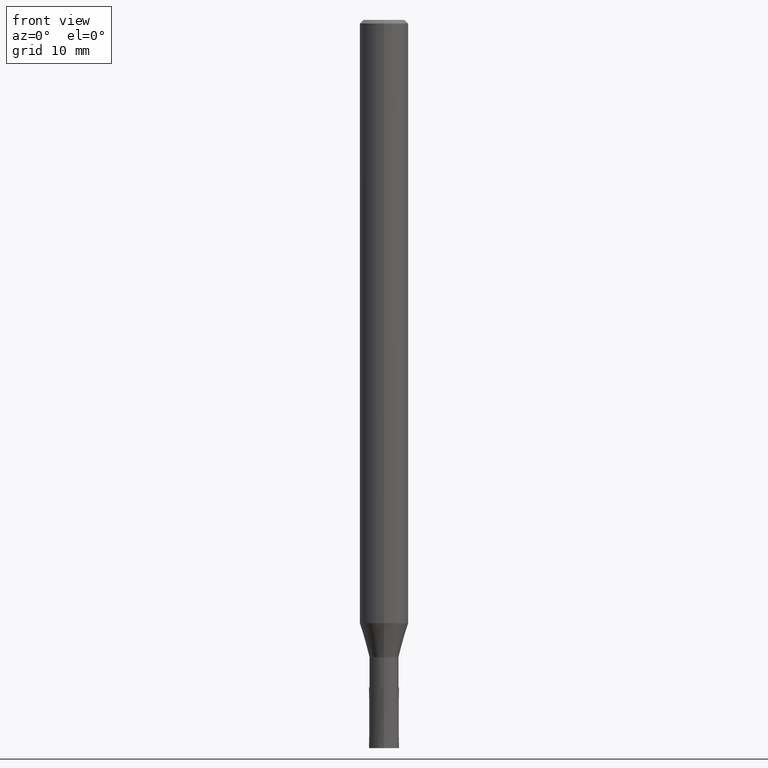
[diagram: clean part render]
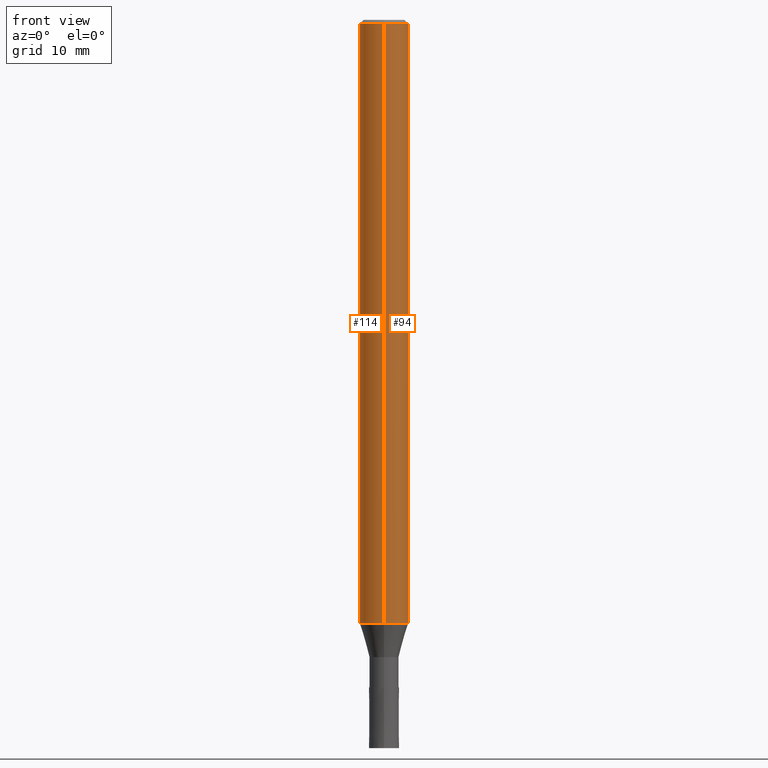
[diagram: same view with one multi-face feature highlighted, each face labeled with its STEP entity id]
A machine part, front view. The highlighted faces form ONE feature: a constant-radius fillet chain: 2 tangent blend faces with common blend radius 2 mm. The faces share edges in the B-rep.
Their STEP definitions:
[1] entity #114 (Cylinder):
#96=EDGE_CURVE('',#162,#202,#235,.T.);
#104=EDGE_CURVE('',#162,#188,#243,.T.);
#114=ADVANCED_FACE('',(#253),#254,.T.);
#128=EDGE_CURVE('',#202,#176,#269,.T.);
#162=VERTEX_POINT('',#309);
#174=EDGE_CURVE('',#176,#188,#323,.T.);
#176=VERTEX_POINT('',#325);
#188=VERTEX_POINT('',#339);
#202=VERTEX_POINT('',#354);
#235=LINE('',#381,#382);
#243=CIRCLE('',#394,2.0);
#253=FACE_OUTER_BOUND('',#404,.T.);
#254=CYLINDRICAL_SURFACE('',#405,2.0);
#269=CIRCLE('',#422,2.0);
#309=CARTESIAN_POINT('',(2.44921270764475E-016,-2.0,-49.71));
#323=LINE('',#493,#494);
#325=CARTESIAN_POINT('',(0.0,2.0,-0.299999999999997));
#339=CARTESIAN_POINT('',(0.0,2.0,-49.71));
#354=CARTESIAN_POINT('',(2.44921270764475E-016,-2.0,-0.299999999999997));
#381=CARTESIAN_POINT('',(2.44921270764475E-016,-2.0,-25.005));
#382=VECTOR('',#556,1.0);
#394=AXIS2_PLACEMENT_3D('',#561,#562,#563);
#404=EDGE_LOOP('',(#569,#570,#571,#572));
#405=AXIS2_PLACEMENT_3D('',#573,#574,#575);
#422=AXIS2_PLACEMENT_3D('',#591,#592,#593);
#493=CARTESIAN_POINT('',(-2.44921270764475E-016,2.0,-25.005));
#494=VECTOR('',#669,1.0);
#556=DIRECTION('',(-0.0,-0.0,1.0));
#561=CARTESIAN_POINT('',(0.0,0.0,-49.71));
#562=DIRECTION('',(0.0,0.0,-1.0));
#563=DIRECTION('',(0.0,1.0,0.0));
#569=ORIENTED_EDGE('',*,*,#174,.T.);
#570=ORIENTED_EDGE('',*,*,#104,.F.);
#571=ORIENTED_EDGE('',*,*,#96,.T.);
#572=ORIENTED_EDGE('',*,*,#128,.T.);
#573=CARTESIAN_POINT('',(0.0,0.0,-25.005));
#574=DIRECTION('',(-0.0,-0.0,1.0));
#575=DIRECTION('',(0.0,1.0,0.0));
#591=CARTESIAN_POINT('',(0.0,0.0,-0.299999999999997));
#592=DIRECTION('',(0.0,0.0,-1.0));
#593=DIRECTION('',(0.0,1.0,0.0));
#669=DIRECTION('',(0.0,0.0,-1.0));
[2] entity #94 (Cylinder):
#94=ADVANCED_FACE('',(#232),#233,.T.);
#96=EDGE_CURVE('',#162,#202,#235,.T.);
#108=EDGE_CURVE('',#176,#202,#247,.T.);
#124=EDGE_CURVE('',#188,#162,#265,.T.);
#162=VERTEX_POINT('',#309);
#174=EDGE_CURVE('',#176,#188,#323,.T.);
#176=VERTEX_POINT('',#325);
#188=VERTEX_POINT('',#339);
#202=VERTEX_POINT('',#354);
#232=FACE_OUTER_BOUND('',#377,.T.);
#233=CYLINDRICAL_SURFACE('',#378,2.0);
#235=LINE('',#381,#382);
#247=CIRCLE('',#399,2.0);
#265=CIRCLE('',#417,2.0);
#309=CARTESIAN_POINT('',(2.44921270764475E-016,-2.0,-49.71));
#323=LINE('',#493,#494);
#325=CARTESIAN_POINT('',(0.0,2.0,-0.299999999999997));
#339=CARTESIAN_POINT('',(0.0,2.0,-49.71));
#354=CARTESIAN_POINT('',(2.44921270764475E-016,-2.0,-0.299999999999997));
#377=EDGE_LOOP('',(#549,#550,#551,#552));
#378=AXIS2_PLACEMENT_3D('',#553,#554,#555);
#381=CARTESIAN_POINT('',(2.44921270764475E-016,-2.0,-25.005));
#382=VECTOR('',#556,1.0);
#399=AXIS2_PLACEMENT_3D('',#564,#565,#566);
#417=AXIS2_PLACEMENT_3D('',#588,#589,#590);
#493=CARTESIAN_POINT('',(-2.44921270764475E-016,2.0,-25.005));
#494=VECTOR('',#669,1.0);
#549=ORIENTED_EDGE('',*,*,#174,.F.);
#550=ORIENTED_EDGE('',*,*,#108,.T.);
#551=ORIENTED_EDGE('',*,*,#96,.F.);
#552=ORIENTED_EDGE('',*,*,#124,.F.);
#553=CARTESIAN_POINT('',(0.0,0.0,-25.005));
#554=DIRECTION('',(-0.0,-0.0,1.0));
#555=DIRECTION('',(0.0,1.0,0.0));
#556=DIRECTION('',(-0.0,-0.0,1.0));
#564=CARTESIAN_POINT('',(0.0,0.0,-0.299999999999997));
#565=DIRECTION('',(0.0,0.0,-1.0));
#566=DIRECTION('',(0.0,1.0,0.0));
#588=CARTESIAN_POINT('',(0.0,0.0,-49.71));
#589=DIRECTION('',(0.0,0.0,-1.0));
#590=DIRECTION('',(0.0,1.0,0.0));
#669=DIRECTION('',(0.0,0.0,-1.0));